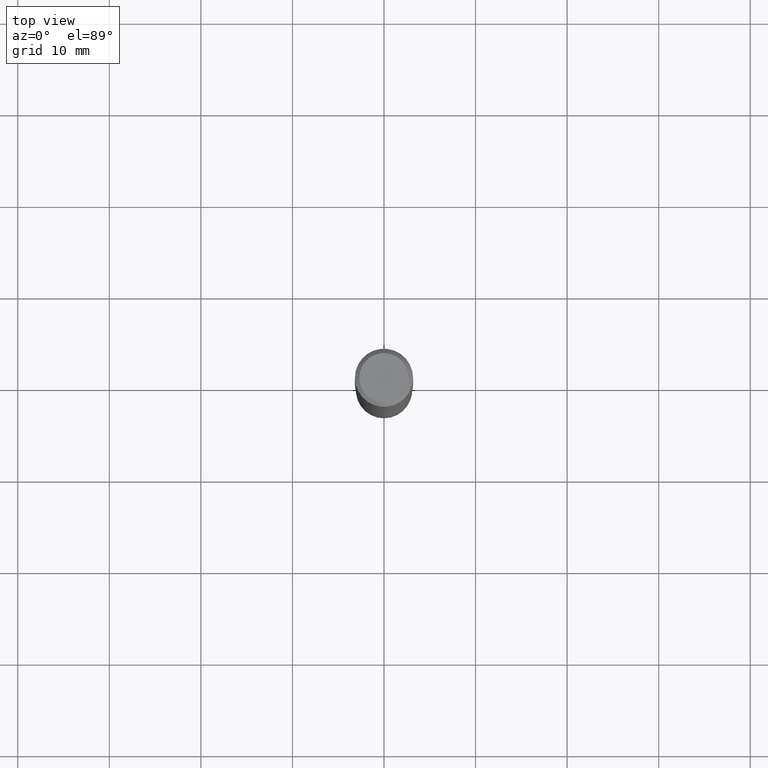
[diagram: clean part render]
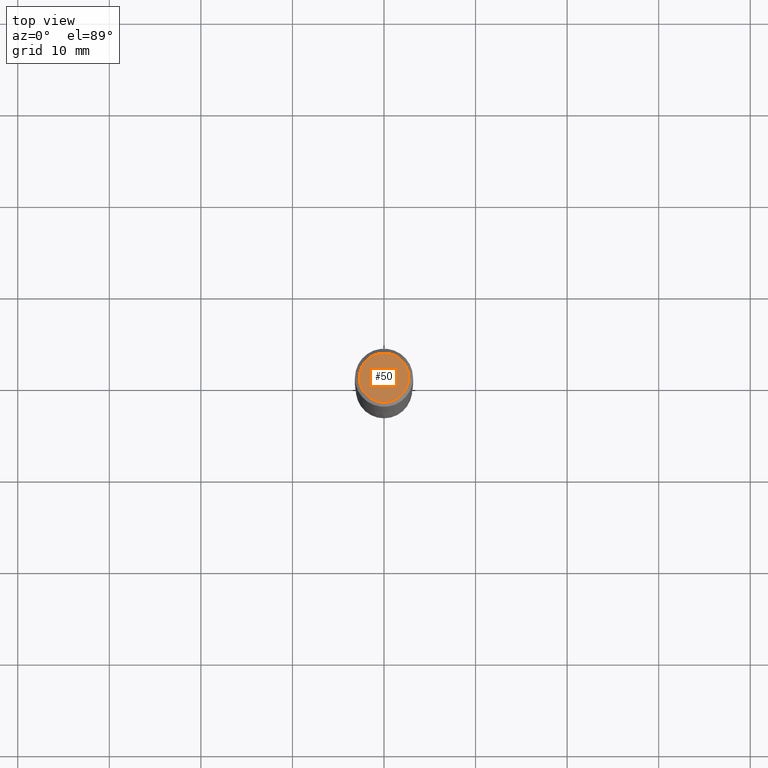
[diagram: same view with one face highlighted and labeled with its STEP entity id]
A machine part, top view. The second image highlights one B-rep face of the part: STEP entity #50.
In plain terms, the highlighted planar face has unit normal (0, -0, -1).
Its self-contained STEP definition (entity closure, byte-faithful):
#34 = AXIS2_PLACEMENT_3D ( 'NONE', #258, #228, #140 ) ;
#45 = CARTESIAN_POINT ( 'NONE',  ( 6.364025535057318316E-46, -9.086141822531067035E-32, -2.602374448188125350E-17 ) ) ;
#50 = ADVANCED_FACE ( 'NONE', ( #295 ), #298, .F. ) ;
#87 = DIRECTION ( 'NONE',  ( 1.000000000000000000, -6.982962677686266711E-15, 4.877714189860772023E-29 ) ) ;
#90 = CIRCLE ( 'NONE', #355, 0.1062499999999999972 ) ;
#97 = ORIENTED_EDGE ( 'NONE', *, *, #472, .T. ) ;
#107 = CIRCLE ( 'NONE', #319, 0.1062499999999999972 ) ;
#117 = VERTEX_POINT ( 'NONE', #396 ) ;
#136 = ORIENTED_EDGE ( 'NONE', *, *, #278, .T. ) ;
#140 = DIRECTION ( 'NONE',  ( -1.000000000000000000, 6.982962677686265922E-15, -4.876176775795935793E-29 ) ) ;
#228 = DIRECTION ( 'NONE',  ( 2.438088387897960049E-29, -3.491481338843145188E-15, -1.000000000000000000 ) ) ;
#258 = CARTESIAN_POINT ( 'NONE',  ( 3.182012767528659158E-46, -4.543070911265533518E-32, -1.301187224094062675E-17 ) ) ;
#278 = EDGE_CURVE ( 'NONE', #117, #377, #107, .T. ) ;
#281 = CARTESIAN_POINT ( 'NONE',  ( 0.1062499999999999972, -8.259777185439882643E-16, -2.602374448187577153E-17 ) ) ;
#282 = DIRECTION ( 'NONE',  ( -2.445468806185136597E-29, 3.491481338843145583E-15, 1.000000000000000000 ) ) ;
#295 = FACE_OUTER_BOUND ( 'NONE', #386, .T. ) ;
#298 = PLANE ( 'NONE',  #34 ) ;
#319 = AXIS2_PLACEMENT_3D ( 'NONE', #45, #420, #87 ) ;
#355 = AXIS2_PLACEMENT_3D ( 'NONE', #477, #282, #438 ) ;
#377 = VERTEX_POINT ( 'NONE', #281 ) ;
#386 = EDGE_LOOP ( 'NONE', ( #136, #97 ) ) ;
#396 = CARTESIAN_POINT ( 'NONE',  ( -0.1062499999999999972, 7.746724220558198188E-16, -2.602374448188655674E-17 ) ) ;
#420 = DIRECTION ( 'NONE',  ( -2.445468806185136597E-29, 3.491481338843145583E-15, 1.000000000000000000 ) ) ;
#438 = DIRECTION ( 'NONE',  ( 1.000000000000000000, -6.982962677686266711E-15, 4.877714189860772023E-29 ) ) ;
#472 = EDGE_CURVE ( 'NONE', #377, #117, #90, .T. ) ;
#477 = CARTESIAN_POINT ( 'NONE',  ( 6.364025535057318316E-46, -9.086141822531067035E-32, -2.602374448188125350E-17 ) ) ;